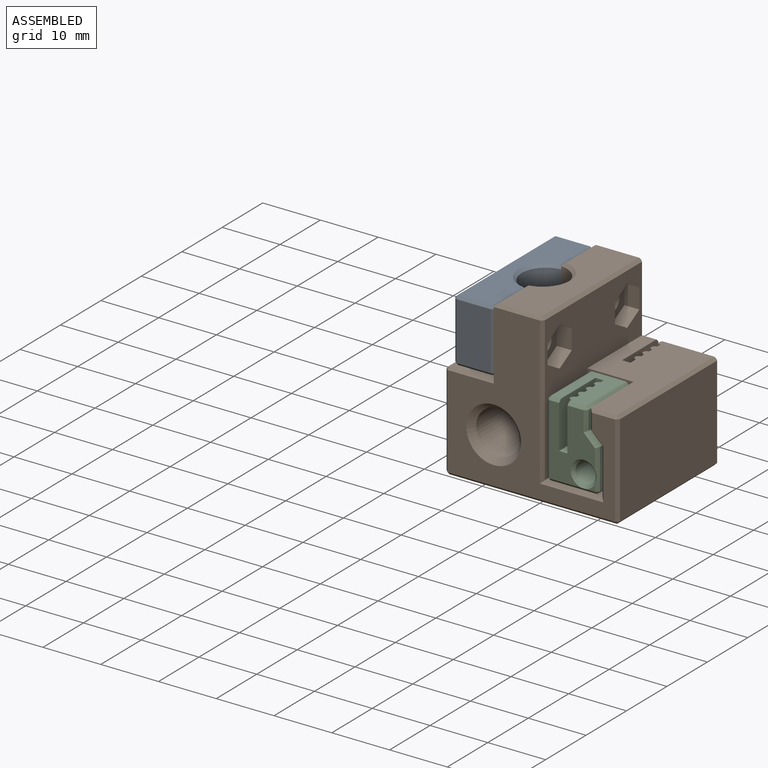
[diagram: assembled view]
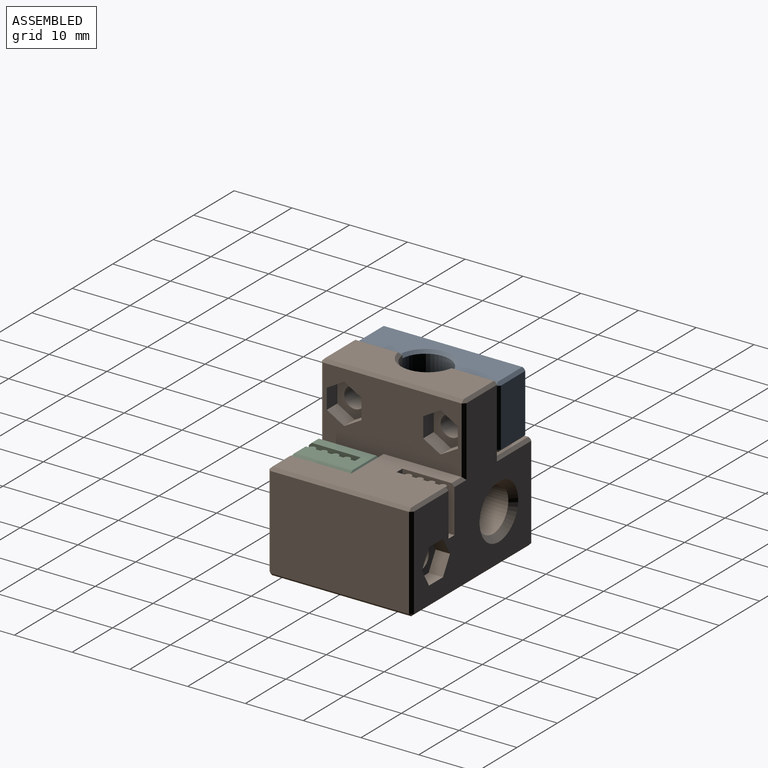
[diagram: assembled view, second angle]
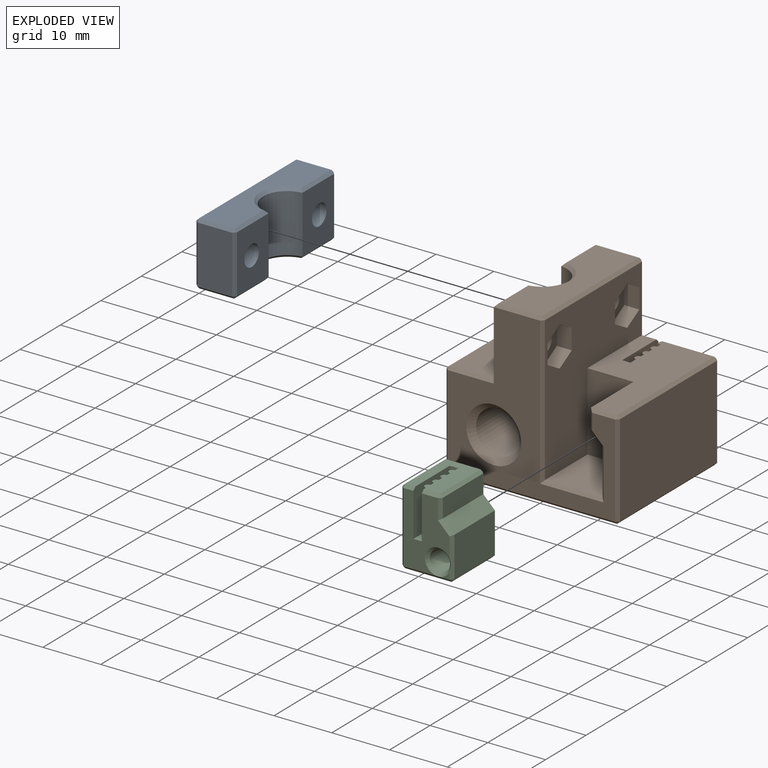
[diagram: exploded view]
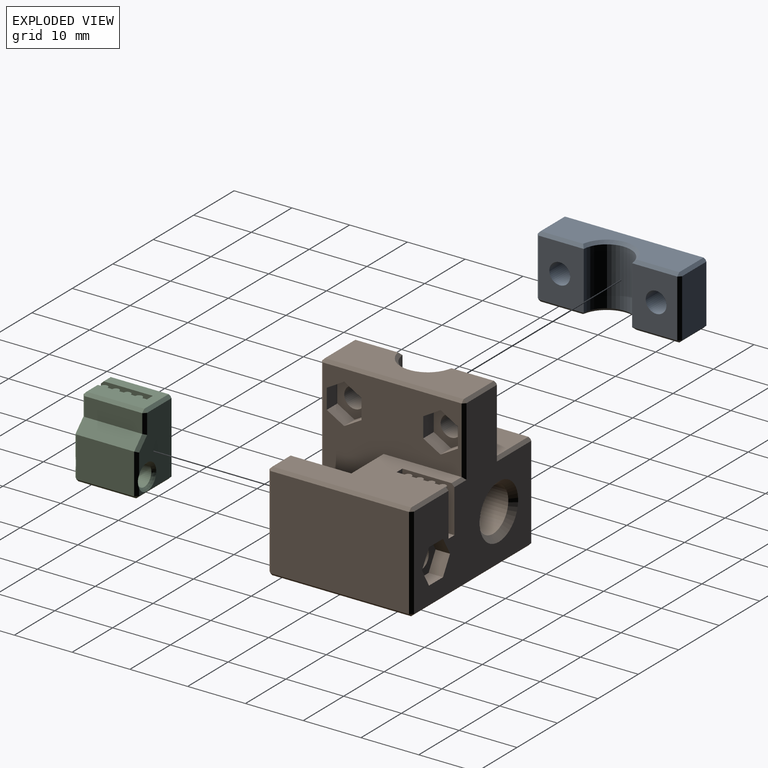
[diagram: exploded view, second angle]
ASSEMBLY  parts=3 mates=5
PART A: 34 faces, bbox 11x25x7 mm
  f0: plane 10x7.81mm, normal (0,0,-1), area 67.9mm2, adj f7,f9,f17,f27,f32
  f1: plane 24x6mm, normal (-1,0,0), area 116.8mm2, adj f20,f25,f28,f31,f32,f33
  f2: plane 10x6mm, normal (0,-1,0), area 60mm2, adj f14,f15,f25,f26
  f3: plane 24x6mm, normal (1,0,0), area 116.8mm2, adj f10,f12,f15,f16,f17,f18
  f4: plane 10x6mm, normal (0,1,0), area 60mm2, adj f18,f19,f27,f28
  f5: plane 24x10mm, normal (0,0,1), area 219.6mm2, adj f8,f9,f10,f14,f19,f20
  f6: plane 10x7.81mm, normal (0,0,-1), area 67.9mm2, adj f7,f8,f16,f26,f31
  f7: cylinder r=4.2mm len=10mm, axis (1,0,0), area 125.9mm2, adj f0,f6,f12,f33
  f8: cylinder r=1.8mm len=7mm, axis (0,0,-1), area 79.2mm2, adj f5,f6
  f9: cylinder r=1.8mm len=7mm, axis (0,0,-1), area 79.2mm2, adj f0,f5
  f10: plane 24x0.5mm, normal (0.71,0,0.71), area 17mm2, adj f3,f5,f11,f13
  f11: plane 0.5x0.5mm, normal (0.58,-0.58,0.58), area 0.2mm2, adj f10,f14,f15
  f12: cone r=4.2mm half-angle=45deg, axis (1,0,0), area 9.1mm2, adj f3,f7,f16,f17
  f13: plane 0.5x0.5mm, normal (0.58,0.58,0.58), area 0.2mm2, adj f10,f18,f19
  f14: plane 10x0.5mm, normal (0,-0.71,0.71), area 7.1mm2, adj f2,f5,f11,f21
  f15: plane 6x0.5mm, normal (0.71,-0.71,0), area 4.2mm2, adj f2,f3,f11,f22
  f16: plane 7.81x0.5mm, normal (0.71,0,-0.71), area 5.4mm2, adj f3,f6,f12,f22
  f17: plane 7.81x0.5mm, normal (0.71,0,-0.71), area 5.4mm2, adj f0,f3,f12,f23
  f18: plane 6x0.5mm, normal (0.71,0.71,0), area 4.2mm2, adj f3,f4,f13,f23
  f19: plane 10x0.5mm, normal (0,0.71,0.71), area 7.1mm2, adj f4,f5,f13,f24
  f20: plane 24x0.5mm, normal (-0.71,0,0.71), area 17mm2, adj f1,f5,f21,f24
  f21: plane 0.5x0.5mm, normal (-0.58,-0.58,0.58), area 0.2mm2, adj f14,f20,f25
  f22: plane 0.5x0.5mm, normal (0.58,-0.58,-0.58), area 0.2mm2, adj f15,f16,f26
  f23: plane 0.5x0.5mm, normal (0.58,0.58,-0.58), area 0.2mm2, adj f17,f18,f27
  f24: plane 0.5x0.5mm, normal (-0.58,0.58,0.58), area 0.2mm2, adj f19,f20,f28
  f25: plane 6x0.5mm, normal (-0.71,-0.71,0), area 4.2mm2, adj f1,f2,f21,f29
  f26: plane 10x0.5mm, normal (0,-0.71,-0.71), area 7.1mm2, adj f2,f6,f22,f29
  f27: plane 10x0.5mm, normal (0,0.71,-0.71), area 7.1mm2, adj f0,f4,f23,f30
  f28: plane 6x0.5mm, normal (-0.71,0.71,0), area 4.2mm2, adj f1,f4,f24,f30
  f29: plane 0.5x0.5mm, normal (-0.58,-0.58,-0.58), area 0.2mm2, adj f25,f26,f31
  f30: plane 0.5x0.5mm, normal (-0.58,0.58,-0.58), area 0.2mm2, adj f27,f28,f32
  f31: plane 7.81x0.5mm, normal (-0.71,0,-0.71), area 5.4mm2, adj f1,f6,f29,f33
  f32: plane 7.81x0.5mm, normal (-0.71,0,-0.71), area 5.4mm2, adj f0,f1,f30,f33
  f33: cone r=4.2mm half-angle=45deg, axis (-1,0,0), area 9.1mm2, adj f1,f7,f31,f32
PART B: 96 faces, bbox 30x25x29 mm
  f0: plane 29x28mm, normal (0,1,0), area 441.1mm2, adj f36,f37,f45,f47,f48,f49,f50,f51
  f1: plane 24x12.5mm, normal (0,0,1), area 205.9mm2, adj f2,f14,f15,f34,f35,f37,f38,f39
  f2: plane 25x24mm, normal (1,0,0), area 355.4mm2, adj f1,f11,f15,f20,f21,f22,f23,f24
  f3: cylinder r=1.8mm len=5.9mm, axis (-1,0,0), area 66.7mm2, adj f17,f26
  f4: cylinder r=1.8mm len=5.9mm, axis (-1,0,0), area 66.7mm2, adj f5,f33
  f5: plane 11.5x7.81mm, normal (-1,0,0), area 79.6mm2, adj f4,f6,f19,f88,f92
  f6: plane 24x11.9mm, normal (0,0,1), area 217.2mm2, adj f5,f17,f19,f69,f77,f85
  f7: plane 29x28mm, normal (0,-1,0), area 348.2mm2, adj f17,f55,f58,f61,f62,f65,f68,f69
  f8: plane 24x16mm, normal (1,0,0), area 384mm2, adj f55,f56,f63,f64
  f9: plane 24x16mm, normal (-1,0,0), area 378.3mm2, adj f70,f71,f77,f78,f95
  f10: plane 29x24mm, normal (0,0,-1), area 696mm2, adj f62,f63,f71,f72
  f11: plane 10.5x10mm, normal (0,0,1), area 105mm2, adj f2,f12,f15,f73
  f12: plane 10.5x8mm, normal (-1,0,0), area 84mm2, adj f11,f13,f15,f68
  f13: plane 10.5x2mm, normal (-0.71,0,-0.71), area 29.7mm2, adj f12,f14,f15,f65
  f14: plane 10.5x3.5mm, normal (-1,0,0), area 36.8mm2, adj f1,f13,f15,f61
  f15: plane 13.5x10mm, normal (0,-1,0), area 115.8mm2, adj f1,f2,f11,f12,f13,f14,f46
  f16: cylinder r=3.75mm len=23mm, axis (0,-1,0), area 536.1mm2, adj f93,f94,f95
  f17: plane 12x8.31mm, normal (-1,0,0), area 85.5mm2, adj f3,f6,f7,f19,f69,f87
  f18: plane 24x7.5mm, normal (0,0,1), area 152.8mm2, adj f83,f84,f87,f89,f90,f92
  f19: cylinder r=4.2mm len=11.5mm, axis (0,0,1), area 144.8mm2, adj f5,f6,f17,f90
  f20: plane 3x2.6mm, normal (0,-0.5,-0.87), area 9mm2, adj f2,f21,f25,f26
  f21: plane 3x2.6mm, normal (0,0.5,-0.87), area 9mm2, adj f2,f20,f22,f26
  f22: plane 3.46x2.6mm, normal (0,1,0), area 9mm2, adj f2,f21,f23,f26
  f23: plane 3x2.6mm, normal (0,0.5,0.87), area 9mm2, adj f2,f22,f24,f26
  f24: plane 3x2.6mm, normal (0,-0.5,0.87), area 9mm2, adj f2,f23,f25,f26
  f25: plane 3.46x2.6mm, normal (0,-1,0), area 9mm2, adj f2,f20,f24,f26
  f26: plane 6.93x6mm, normal (1,0,0), area 21mm2, adj f3,f20,f21,f22,f23,f24,f25
  f27: plane 3x2.6mm, normal (0,-0.5,-0.87), area 9mm2, adj f2,f28,f32,f33
  f28: plane 3x2.6mm, normal (0,0.5,-0.87), area 9mm2, adj f2,f27,f29,f33
  f29: plane 3.46x2.6mm, normal (0,1,0), area 9mm2, adj f2,f28,f30,f33
  f30: plane 3x2.6mm, normal (0,0.5,0.87), area 9mm2, adj f2,f29,f31,f33
  f31: plane 3x2.6mm, normal (0,-0.5,0.87), area 9mm2, adj f2,f30,f32,f33
  f32: plane 3.46x2.6mm, normal (0,-1,0), area 9mm2, adj f2,f27,f31,f33
  f33: plane 6.93x6mm, normal (1,0,0), area 21mm2, adj f4,f27,f28,f29,f30,f31,f32
  f34: plane 8x0.8mm, normal (-1,0,0), area 6.4mm2, adj f1,f35,f44,f45
  f35: cylinder r=0.6mm len=8mm, axis (0,0,1), area 15.1mm2, adj f1,f34,f36,f45,f57
  f36: plane 7.9x0.4mm, normal (-1,0,0), area 3.1mm2, adj f0,f35,f45,f57
  f37: plane 9x8mm, normal (1,0,0), area 71.9mm2, adj f0,f1,f38,f45,f79
  f38: plane 8x1.45mm, normal (0,1,0), area 11.6mm2, adj f1,f37,f39,f45
  f39: plane 8x1.4mm, normal (-1,0,0), area 11.2mm2, adj f1,f38,f40,f45
  f40: cylinder r=0.6mm len=8mm, axis (0,0,1), area 15.1mm2, adj f1,f39,f41,f45
  f41: plane 8x0.8mm, normal (-1,0,0), area 6.4mm2, adj f1,f40,f42,f45
  f42: cylinder r=0.6mm len=8mm, axis (0,0,1), area 15.1mm2, adj f1,f41,f43,f45
  f43: plane 8x0.8mm, normal (-1,0,0), area 6.4mm2, adj f1,f42,f44,f45
  f44: cylinder r=0.6mm len=8mm, axis (0,0,1), area 15.1mm2, adj f1,f34,f43,f45
  f45: plane 9x1.45mm, normal (0,0,1), area 10.8mm2, adj f0,f34,f35,f36,f37,f38,f39,f40
  f46: cylinder r=1.8mm len=11.5mm, axis (0,1,0), area 130.1mm2, adj f15,f53
  f47: plane 3x2.5mm, normal (-0.87,0,-0.5), area 8.7mm2, adj f0,f48,f52,f53
  f48: plane 3x2.5mm, normal (-0.87,0,0.5), area 8.7mm2, adj f0,f47,f49,f53
  f49: plane 3.46x2.5mm, normal (0,0,1), area 8.7mm2, adj f0,f48,f50,f53
  f50: plane 3x2.5mm, normal (0.87,0,0.5), area 8.7mm2, adj f0,f49,f51,f53
  f51: plane 3x2.5mm, normal (0.87,0,-0.5), area 8.7mm2, adj f0,f50,f52,f53
  f52: plane 3.46x2.5mm, normal (0,0,-1), area 8.7mm2, adj f0,f47,f51,f53
  f53: plane 6.93x6mm, normal (0,1,0), area 21mm2, adj f46,f47,f48,f49,f50,f51,f52
  f54: plane 0.5x0.5mm, normal (0.58,-0.58,0.58), area 0.2mm2, adj f55,f56,f58
  f55: plane 16x0.5mm, normal (0.71,-0.71,0), area 11.3mm2, adj f7,f8,f54,f59
  f56: plane 24x0.5mm, normal (0.71,0,0.71), area 17mm2, adj f1,f8,f54,f60
  f57: plane 8.88x0.5mm, normal (0,0.71,0.71), area 6.1mm2, adj f0,f1,f35,f36,f60
  f58: plane 4.5x0.5mm, normal (0,-0.71,0.71), area 3mm2, adj f1,f7,f54,f61
  f59: plane 0.5x0.5mm, normal (0.58,-0.58,-0.58), area 0.2mm2, adj f55,f62,f63
  f60: plane 0.5x0.5mm, normal (0.58,0.58,0.58), area 0.2mm2, adj f56,f57,f64
  f61: plane 3.5x0.5mm, normal (-0.71,-0.71,0), area 2.2mm2, adj f7,f14,f58,f65
  f62: plane 29x0.5mm, normal (0,-0.71,-0.71), area 20.5mm2, adj f7,f10,f59,f66
  f63: plane 24x0.5mm, normal (0.71,0,-0.71), area 17mm2, adj f8,f10,f59,f67
  f64: plane 16x0.5mm, normal (0.71,0.71,0), area 11.3mm2, adj f0,f8,f60,f67
  f65: plane 2.5x2.21mm, normal (-0.5,-0.71,-0.5), area 2mm2, adj f7,f13,f61,f68
  f66: plane 0.5x0.5mm, normal (-0.58,-0.58,-0.58), area 0.2mm2, adj f62,f70,f71
  f67: plane 0.5x0.5mm, normal (0.58,0.58,-0.58), area 0.2mm2, adj f63,f64,f72
  f68: plane 8.71x0.5mm, normal (-0.71,-0.71,0), area 5.9mm2, adj f7,f12,f65,f73
  f69: plane 8x0.5mm, normal (0,-0.71,0.71), area 5.7mm2, adj f6,f7,f17,f74
  f70: plane 16x0.5mm, normal (-0.71,-0.71,0), area 11.3mm2, adj f7,f9,f66,f74
  f71: plane 24x0.5mm, normal (-0.71,0,-0.71), area 17mm2, adj f9,f10,f66,f75
  f72: plane 29x0.5mm, normal (0,0.71,-0.71), area 20.5mm2, adj f0,f10,f67,f75
  f73: plane 11x0.5mm, normal (0,-0.71,0.71), area 7.4mm2, adj f7,f11,f68,f76
  f74: plane 0.5x0.5mm, normal (-0.58,-0.58,0.58), area 0.2mm2, adj f69,f70,f77
  f75: plane 0.5x0.5mm, normal (-0.58,0.58,-0.58), area 0.2mm2, adj f71,f72,f78
  f76: plane 25.5x0.5mm, normal (0.71,-0.71,0), area 17.9mm2, adj f2,f7,f73,f80
  f77: plane 24x0.5mm, normal (-0.71,0,0.71), area 17mm2, adj f6,f9,f74,f81
  f78: plane 16x0.5mm, normal (-0.71,0.71,0), area 11.3mm2, adj f0,f9,f75,f81
  f79: plane 3x0.5mm, normal (0,0.71,0.71), area 1.9mm2, adj f0,f1,f37,f82
  f80: plane 0.5x0.5mm, normal (0.58,-0.58,0.58), area 0.2mm2, adj f76,f83,f84
  f81: plane 0.5x0.5mm, normal (-0.58,0.58,0.58), area 0.2mm2, adj f77,f78,f85
  f82: plane 12x0.5mm, normal (0.71,0.71,0), area 8.3mm2, adj f0,f2,f79,f86
  f83: plane 24x0.5mm, normal (0.71,0,0.71), area 17mm2, adj f2,f18,f80,f86
  f84: plane 8x0.5mm, normal (0,-0.71,0.71), area 5.5mm2, adj f7,f18,f80,f87
  f85: plane 8.5x0.5mm, normal (0,0.71,0.71), area 5.8mm2, adj f0,f6,f81,f88
  f86: plane 0.5x0.5mm, normal (0.58,0.58,0.58), area 0.2mm2, adj f82,f83,f89
  f87: plane 8.31x0.5mm, normal (-0.71,0,0.71), area 5.5mm2, adj f17,f18,f84,f90
  f88: plane 12x0.5mm, normal (-0.71,0.71,0), area 8.3mm2, adj f0,f5,f85,f91
  f89: plane 7.5x0.5mm, normal (0,0.71,0.71), area 5.3mm2, adj f0,f18,f86,f91
  f90: cone r=4.2mm half-angle=45deg, axis (0,0,1), area 9.1mm2, adj f18,f19,f87,f92
  f91: plane 0.5x0.5mm, normal (-0.58,0.58,0.58), area 0.2mm2, adj f88,f89,f92
  f92: plane 7.81x0.5mm, normal (-0.71,0,0.71), area 5.4mm2, adj f5,f18,f90,f91
  f93: cone r=3.75mm half-angle=45deg, axis (0,-1,0), area 37.8mm2, adj f7,f16
  f94: cone r=3.75mm half-angle=45deg, axis (0,1,0), area 37.8mm2, adj f0,f16
  f95: cylinder r=1.35mm len=5mm, axis (-1,0,0), area 41.4mm2, adj f9,f16
PART C: 50 faces, bbox 9x11x13.3 mm
  f0: plane 12.25x8mm, normal (0,1,0), area 72.8mm2, adj f26,f27,f28,f31,f32,f36,f37
  f1: plane 12.25x8mm, normal (0,-1,0), area 62mm2, adj f19,f20,f22,f24,f34,f39,f43,f45
  f2: plane 10x6mm, normal (0,0,1), area 49.9mm2, adj f11,f12,f13,f14,f15,f16,f17,f18
  f3: plane 2x1.22mm, normal (0,-1,0), area 0.7mm2, adj f43,f48,f49
  f4: plane 10x7mm, normal (1,0,0), area 70mm2, adj f9,f37,f44,f48
  f5: plane 10x8mm, normal (0,0,-1), area 80mm2, adj f35,f36,f43,f44
  f6: plane 12.25x10mm, normal (-1,0,0), area 122.5mm2, adj f25,f26,f34,f35
  f7: plane 10x3.25mm, normal (1,0,0), area 32.5mm2, adj f9,f27,f38,f45
  f8: cylinder r=1.75mm len=10mm, axis (0,1,0), area 110mm2, adj f31,f49
  f9: plane 10x2mm, normal (0.71,0,0.71), area 28.3mm2, adj f4,f7,f32,f47
  f10: plane 2x1.22mm, normal (0,1,0), area 0.7mm2, adj f31,f36,f37
  f11: plane 8x0.8mm, normal (-1,0,0), area 6.4mm2, adj f2,f12,f21,f22
  f12: cylinder r=0.6mm len=8mm, axis (0,0,1), area 15.1mm2, adj f2,f11,f13,f22
  f13: plane 8x0.8mm, normal (-1,0,0), area 6.4mm2, adj f2,f12,f14,f22
  f14: cylinder r=0.6mm len=8mm, axis (0,0,1), area 15.1mm2, adj f2,f13,f15,f22
  f15: plane 8x0.8mm, normal (-1,0,0), area 6.4mm2, adj f2,f14,f16,f22
  f16: cylinder r=0.6mm len=8mm, axis (0,0,1), area 15.1mm2, adj f2,f15,f17,f22
  f17: plane 8x0.8mm, normal (-1,0,0), area 6.4mm2, adj f2,f16,f18,f22
  f18: cylinder r=0.6mm len=8mm, axis (0,0,1), area 15.1mm2, adj f2,f17,f19,f22
  f19: plane 8x1mm, normal (-1,0,0), area 7.9mm2, adj f1,f2,f18,f22,f39
  f20: plane 9x8mm, normal (1,0,0), area 71.9mm2, adj f1,f2,f21,f22,f24
  f21: plane 8x1.45mm, normal (0,-1,0), area 11.6mm2, adj f2,f11,f20,f22
  f22: plane 9x1.45mm, normal (0,0,1), area 10.8mm2, adj f1,f11,f12,f13,f14,f15,f16,f17
  f23: plane 0.5x0.5mm, normal (-0.58,0.58,0.58), area 0.2mm2, adj f25,f26,f28
  f24: plane 1.75x0.5mm, normal (0,-0.71,0.71), area 1.2mm2, adj f1,f2,f20,f29
  f25: plane 10x0.5mm, normal (-0.71,0,0.71), area 7.1mm2, adj f2,f6,f23,f29
  f26: plane 12.25x0.5mm, normal (-0.71,0.71,0), area 8.7mm2, adj f0,f6,f23,f30
  f27: plane 3.46x0.5mm, normal (0.71,0.71,0), area 2.4mm2, adj f0,f7,f32,f33
  f28: plane 6x0.5mm, normal (0,0.71,0.71), area 4.2mm2, adj f0,f2,f23,f33
  f29: plane 0.5x0.5mm, normal (-0.58,-0.58,0.58), area 0.2mm2, adj f24,f25,f34
  f30: plane 0.5x0.5mm, normal (-0.58,0.58,-0.58), area 0.2mm2, adj f26,f35,f36
  f31: cone r=2.25mm half-angle=45deg, axis (0,1,0), area 8.6mm2, adj f0,f8,f10,f37
  f32: plane 2.5x2.21mm, normal (0.5,0.71,0.5), area 2mm2, adj f0,f9,f27,f37
  f33: plane 0.5x0.5mm, normal (0.58,0.58,0.58), area 0.2mm2, adj f27,f28,f38
  f34: plane 12.25x0.5mm, normal (-0.71,-0.71,0), area 8.7mm2, adj f1,f6,f29,f40
  f35: plane 10x0.5mm, normal (-0.71,0,-0.71), area 7.1mm2, adj f5,f6,f30,f40
  f36: plane 8x0.5mm, normal (0,0.71,-0.71), area 5.7mm2, adj f0,f5,f10,f30,f41
  f37: plane 7x0.5mm, normal (0.71,0.71,0), area 4.6mm2, adj f0,f4,f10,f31,f32,f41
  f38: plane 10x0.5mm, normal (0.71,0,0.71), area 7.1mm2, adj f2,f7,f33,f42
  f39: plane 2.8x0.5mm, normal (0,-0.71,0.71), area 2mm2, adj f1,f2,f19,f42
  f40: plane 0.5x0.5mm, normal (-0.58,-0.58,-0.58), area 0.2mm2, adj f34,f35,f43
  f41: plane 0.5x0.5mm, normal (0.58,0.58,-0.58), area 0.2mm2, adj f36,f37,f44
  f42: plane 0.5x0.5mm, normal (0.58,-0.58,0.58), area 0.2mm2, adj f38,f39,f45
  f43: plane 8x0.5mm, normal (0,-0.71,-0.71), area 5.7mm2, adj f1,f3,f5,f40,f46
  f44: plane 10x0.5mm, normal (0.71,0,-0.71), area 7.1mm2, adj f4,f5,f41,f46
  f45: plane 3.46x0.5mm, normal (0.71,-0.71,0), area 2.4mm2, adj f1,f7,f42,f47
  f46: plane 0.5x0.5mm, normal (0.58,-0.58,-0.58), area 0.2mm2, adj f43,f44,f48
  f47: plane 2.5x2.21mm, normal (0.5,-0.71,0.5), area 2mm2, adj f1,f9,f45,f48
  f48: plane 7x0.5mm, normal (0.71,-0.71,0), area 4.6mm2, adj f1,f3,f4,f46,f47,f49
  f49: cone r=1.75mm half-angle=45deg, axis (0,-1,0), area 8.6mm2, adj f1,f3,f8,f48
PLACE A rot(axis=(0.71,0,-0.71),180deg) t=(-47.17,1.35,45.03)mm
PLACE B rot(axis=(-0.94,-0.34,-0.08),0deg) t=(-40.67,1.35,22.03)mm
PLACE C rot(axis=(-0.94,-0.34,-0.08),0deg) t=(-38.12,-0.15,25.78)mm
MATE slider C.f8 <-> B.f46  axis (0,1,0) through (-31.62,-10.65,28.53)mm
MATE slider A.f9 <-> B.f3  axis (1,0,0) through (-54.17,-6.99,45.03)mm
MATE planar A.f4 <-> B.f7  axis (0,-1,0) through (-50.67,-11.15,45.03)mm
MATE planar C.f1 <-> B.f7  axis (0,-1,0) through (-34.62,-11.15,26.28)mm
MATE planar A.f6 <-> B.f17  axis (1,0,0) through (-47.17,9.44,40.03)mm
